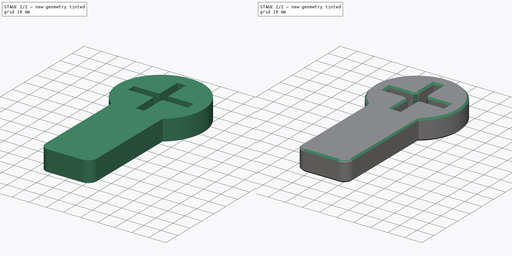
[diagram: build sequence overview — one tinted view per stage of 2, left to right]
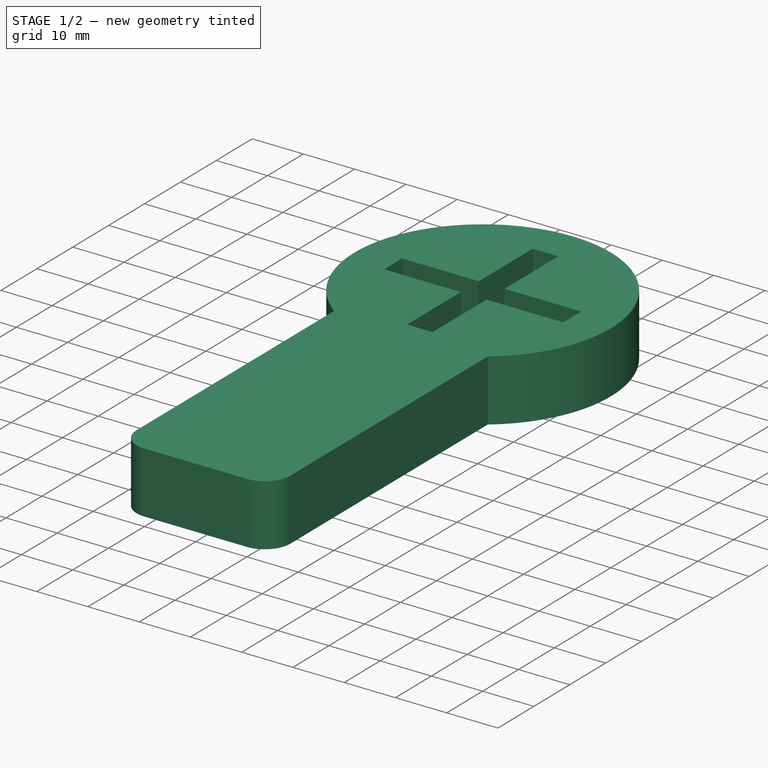
[diagram: stage 1 of 2 — iso view after this stage's code; geometry added in this stage tinted green]
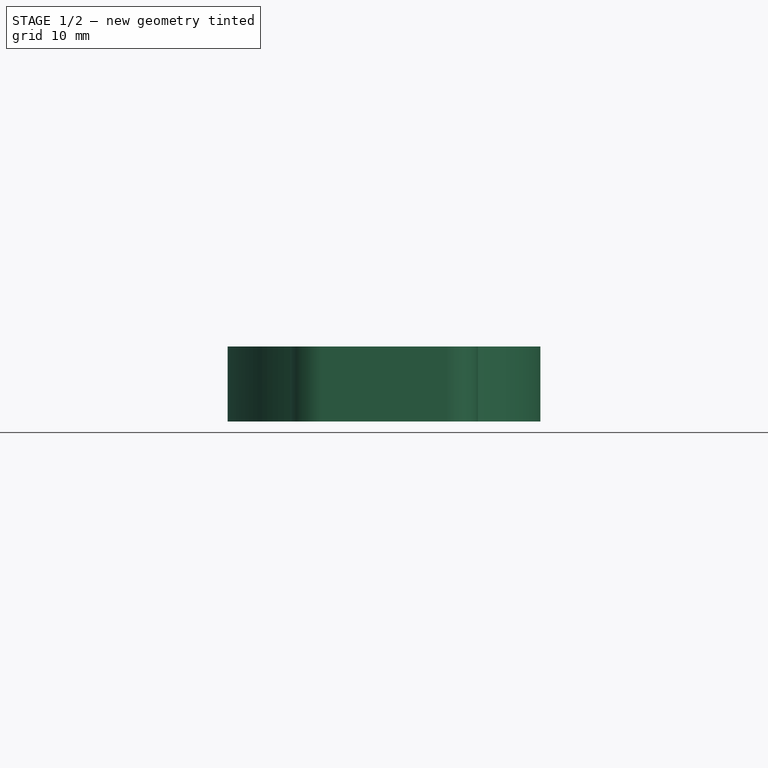
[diagram: stage 1 of 2 — front view after this stage's code; geometry added in this stage tinted green]
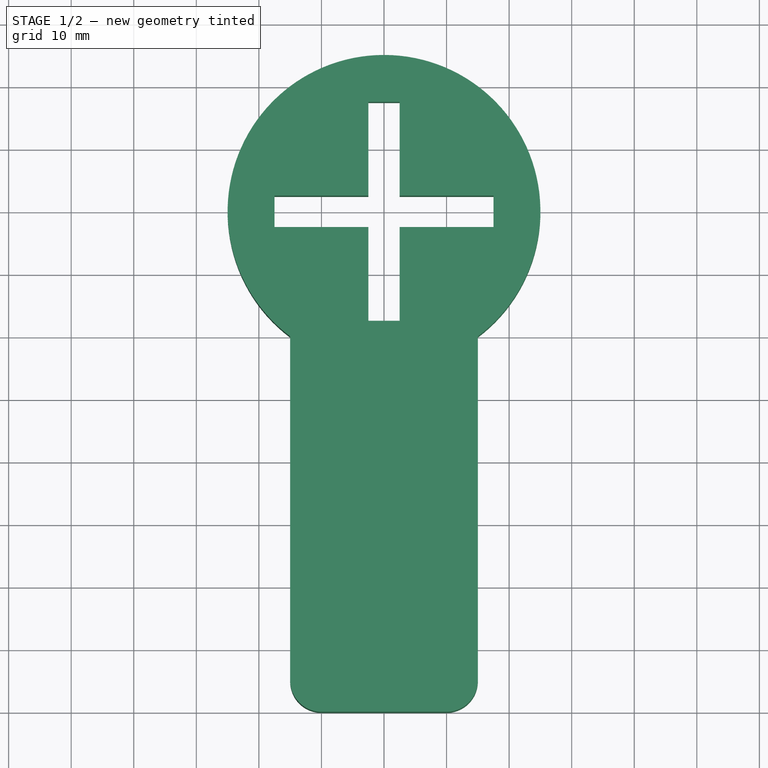
[diagram: stage 1 of 2 — top view after this stage's code; geometry added in this stage tinted green]
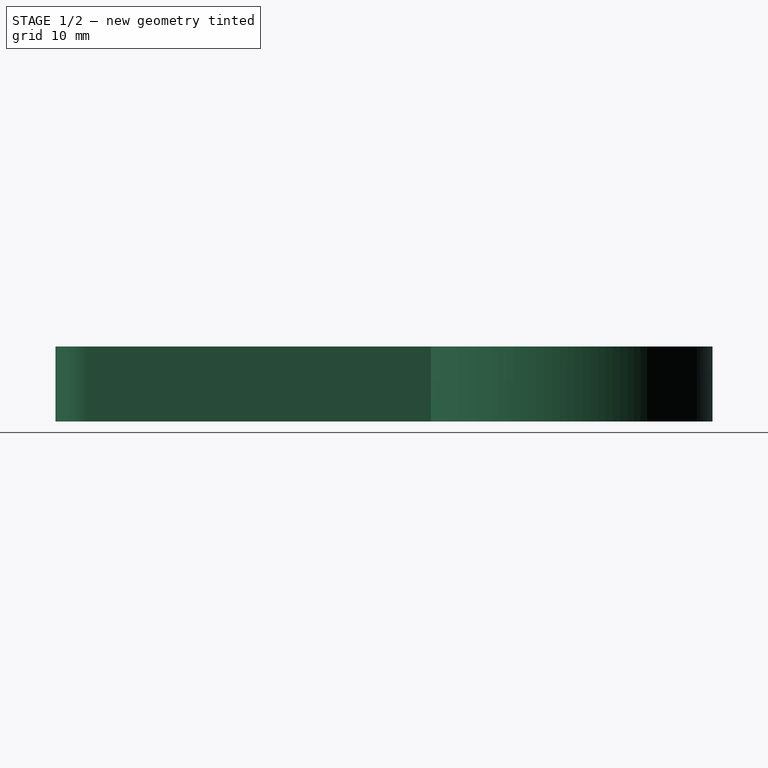
[diagram: stage 1 of 2 — right view after this stage's code; geometry added in this stage tinted green]
FCSTD DOCUMENT  (FreeCAD 0.19R24291 (Git))
Label: super-cup-oil-cap-wrench
License: All rights reserved
LicenseURL: http://en.wikipedia.org/wiki/All_rights_reserved
objects: PartDesign::Fillet×2, Sketcher::SketchObject×1, PartDesign::Pad×1, PartDesign::Chamfer×1, PartDesign::Body×1
note: 10 computed .brp shape members not serialized (recipe doc carries the construction recipe); baked Part::Feature solids carry a one-line shape summary decoded from their .brp

FEATURE [Sketcher::SketchObject] Sketch
  FullyConstrained = true
  MapMode = 5
  Support = -> [XY_Plane]
  sketch-geometry (16):
    g0: LineSegment StartX=-17.5 StartY=2.5 StartZ=0 EndX=-2.5 EndY=2.5 EndZ=0
    g1: LineSegment StartX=17.5 StartY=2.5 StartZ=0 EndX=17.5 EndY=-2.5 EndZ=0
    g2: LineSegment StartX=17.5 StartY=-2.5 StartZ=0 EndX=2.5 EndY=-2.5 EndZ=0
    g3: LineSegment StartX=-17.5 StartY=-2.5 StartZ=0 EndX=-17.5 EndY=2.5 EndZ=0
    g4: ArcOfCircle CenterX=0 CenterY=0 CenterZ=0 NormalX=0 NormalY=0 NormalZ=1 AngleXU=0 Radius=25 StartAngle=5.35589 EndAngle=10.3521
    g5: LineSegment StartX=-2.5 StartY=17.5 StartZ=0 EndX=2.5 EndY=17.5 EndZ=0
    g6: LineSegment StartX=2.5 StartY=17.5 StartZ=0 EndX=2.5 EndY=2.5 EndZ=0
    g7: LineSegment StartX=2.5 StartY=-17.5 StartZ=0 EndX=-2.5 EndY=-17.5 EndZ=0
    g8: LineSegment StartX=-2.5 StartY=-17.5 StartZ=0 EndX=-2.5 EndY=-2.5 EndZ=0
    g9: LineSegment StartX=-2.5 StartY=2.5 StartZ=0 EndX=-2.5 EndY=17.5 EndZ=0
    g10: LineSegment StartX=-2.5 StartY=-2.5 StartZ=0 EndX=-17.5 EndY=-2.5 EndZ=0
    g11: LineSegment StartX=2.5 StartY=-2.5 StartZ=0 EndX=2.5 EndY=-17.5 EndZ=0
    g12: LineSegment StartX=2.5 StartY=2.5 StartZ=0 EndX=17.5 EndY=2.5 EndZ=0
    g13: LineSegment StartX=-15 StartY=-20 StartZ=0 EndX=-15 EndY=-80 EndZ=0
    g14: LineSegment StartX=-15 StartY=-80 StartZ=0 EndX=15 EndY=-80 EndZ=0
    g15: LineSegment StartX=15 StartY=-80 StartZ=0 EndX=15 EndY=-20 EndZ=0
  constraints (44):
    c: Coincident(g12,g1)
    c: Coincident(g1,g2)
    c: Coincident(g10,g3)
    c: Coincident(g3,g0)
    c: Horizontal(g0)
    c: Horizontal(g2)
    c: Vertical(g1)
    c: Vertical(g3)
    c: DistanceY(g3,g3) = 5
    c: DistanceY(g-1,g0) = 2.5
    c: DistanceX(g0,g12) = 35
    c: DistanceX(g0,g-1) = 17.5
    c: Coincident(g4,g-1)
    c: Coincident(g5,g6)
    c: Coincident(g11,g7)
    c: Coincident(g7,g8)
    c: Coincident(g9,g5)
    c: Horizontal(g5)
    c: Horizontal(g7)
    c: Vertical(g6)
    c: Vertical(g8)
    c: DistanceY(g8,g9) = 35
    c: DistanceY(g7,g4) = 17.5
    c: DistanceX(g5,g4) = 2.5
    c: DistanceX(g5,g5) = 5
    c: Tangent(g8,g9)
    c: Coincident(g10,g8)
    c: Tangent(g2,g10)
    c: Coincident(g11,g2)
    c: Tangent(g6,g11)
    c: Coincident(g0,g9)
    c: Coincident(g12,g6)
    c: Tangent(g0,g12)
    c: Radius(g4) = 25
    c: Vertical(g13)
    c: Coincident(g13,g14)
    c: Horizontal(g14)
    c: Coincident(g14,g15)
    c: Vertical(g15)
    c: DistanceY(g13,g4) = 80
    c: DistanceX(g14,g14) = 30
    c: DistanceX(g13,g4) = 15
    c: Coincident(g4,g15)
    c: Coincident(g4,g13)
FEATURE [PartDesign::Pad] Pad
  Direction = (1,1,1)
  Length = 12
  Length2 = 100
  Profile = -> Sketch
  Type = 0
FEATURE [PartDesign::Fillet] Fillet
  Base = -> Pad [Edge5,Edge8]
  BaseFeature = -> Pad
  Radius = 5
  SupportTransform = false
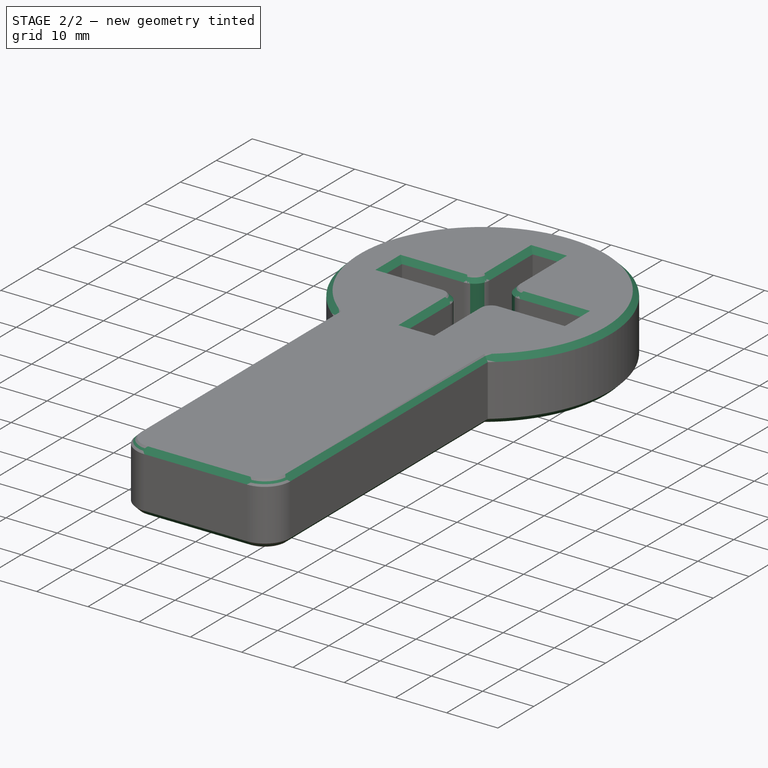
[diagram: stage 2 of 2 — iso view after this stage's code; geometry added in this stage tinted green]
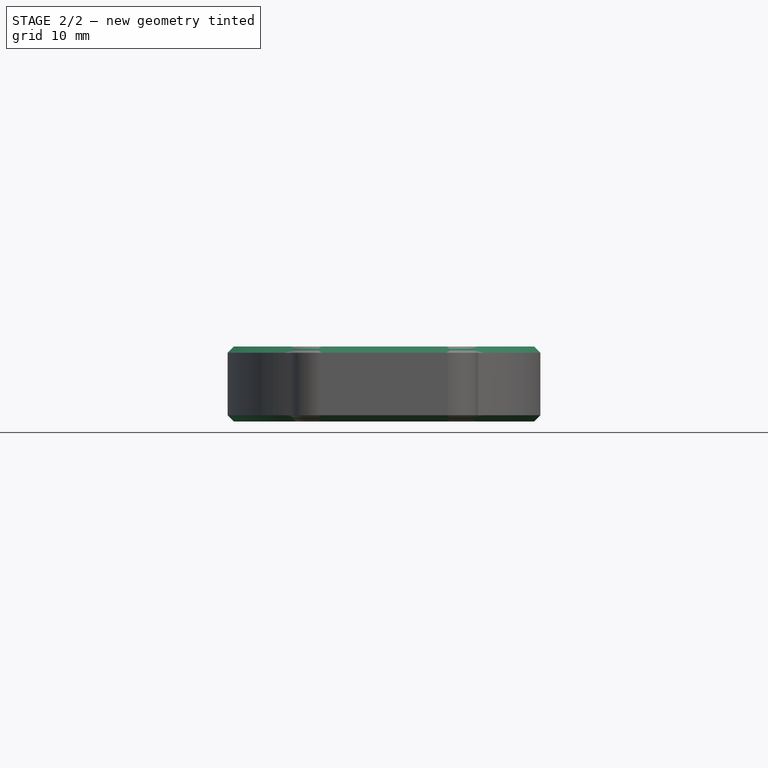
[diagram: stage 2 of 2 — front view after this stage's code; geometry added in this stage tinted green]
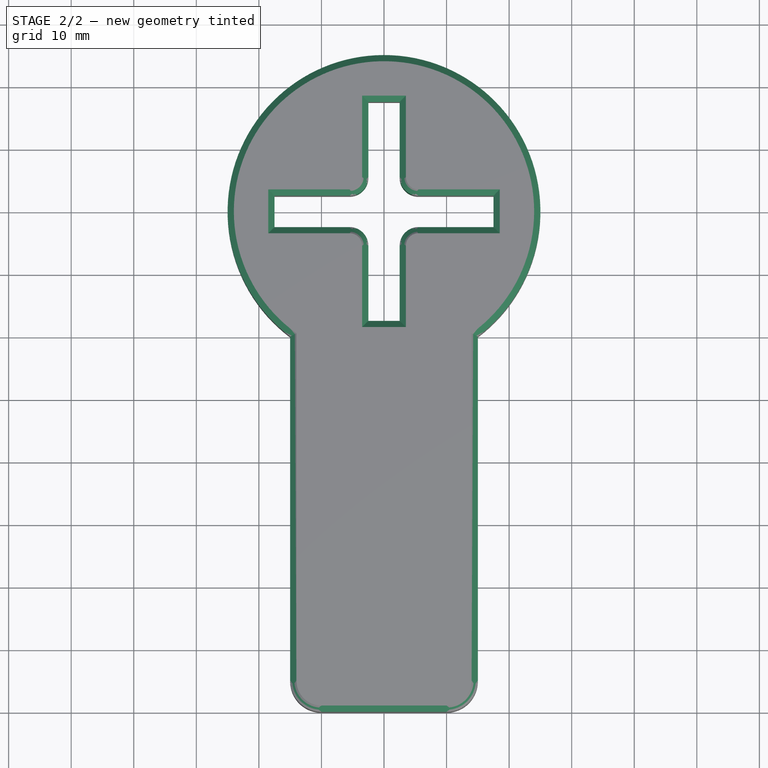
[diagram: stage 2 of 2 — top view after this stage's code; geometry added in this stage tinted green]
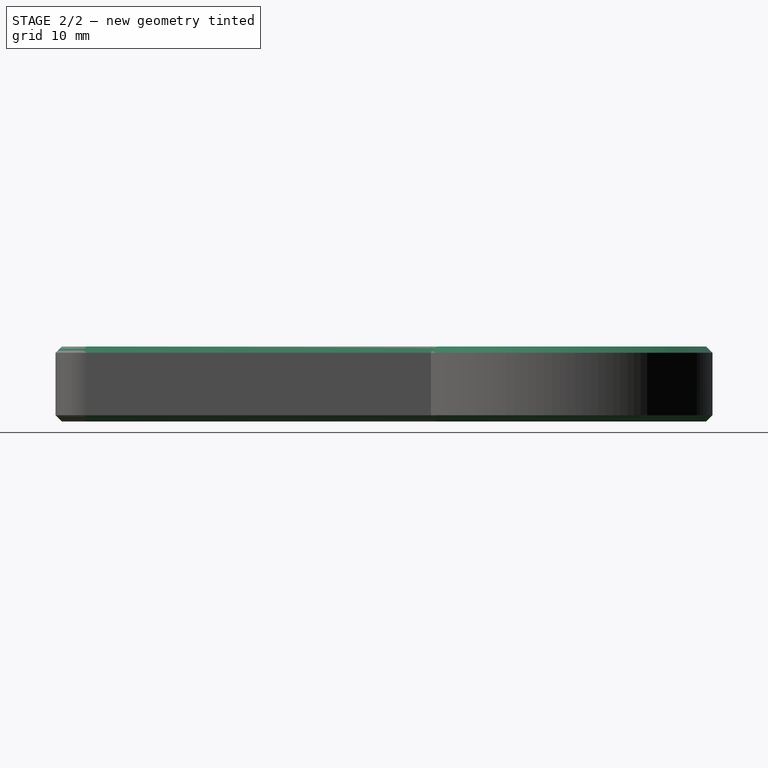
[diagram: stage 2 of 2 — right view after this stage's code; geometry added in this stage tinted green]
FEATURE [PartDesign::Fillet] Fillet001
  Base = -> Fillet [Edge44,Edge47,Edge50,Edge53]
  BaseFeature = -> Fillet
  Radius = 3
  SupportTransform = false
FEATURE [PartDesign::Chamfer] Chamfer
  Angle = 45
  Base = -> Fillet001 [Face1,Face24]
  BaseFeature = -> Fillet001
  ChamferType = 0
  FlipDirection = false
  Size = 1
  Size2 = 1
  SupportTransform = false
FEATURE [PartDesign::Body] Body
  Group = -> [Sketch,Pad,Fillet,Fillet001,Chamfer]
  Origin = -> Origin
  Tip = -> Chamfer
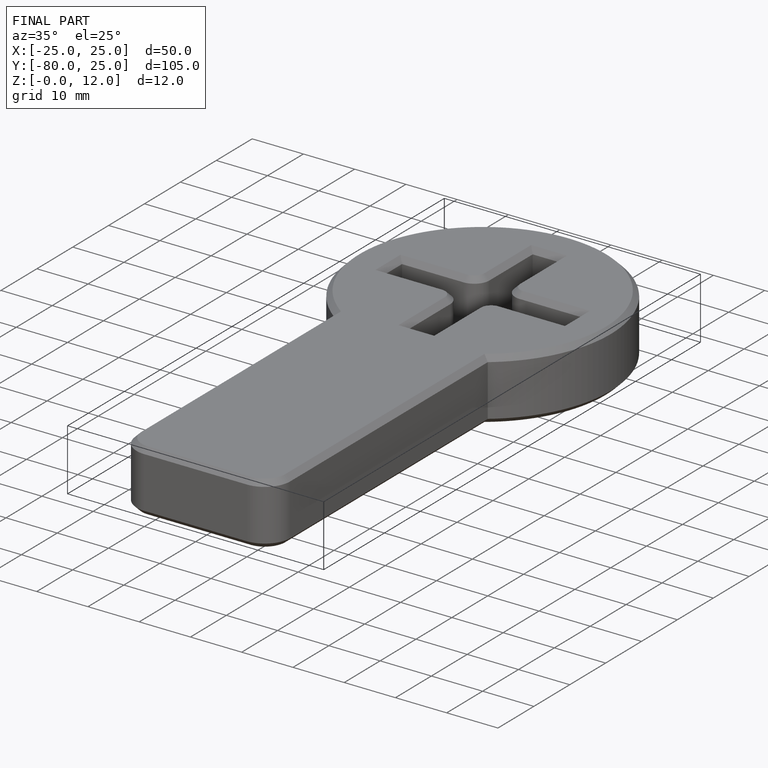
[diagram: finished part — iso view with bounding-box wireframe]
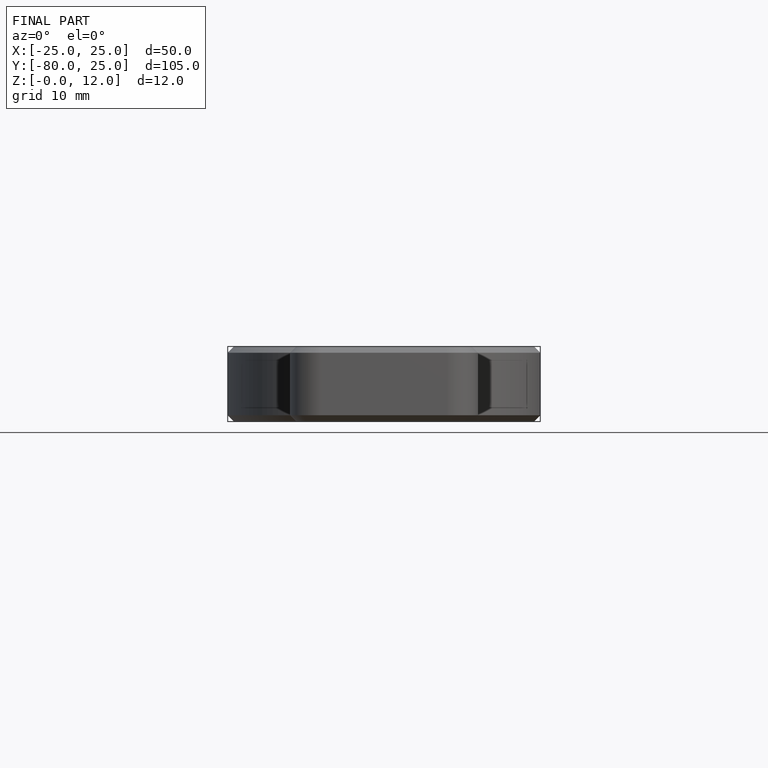
[diagram: finished part — front view with bounding-box wireframe]
